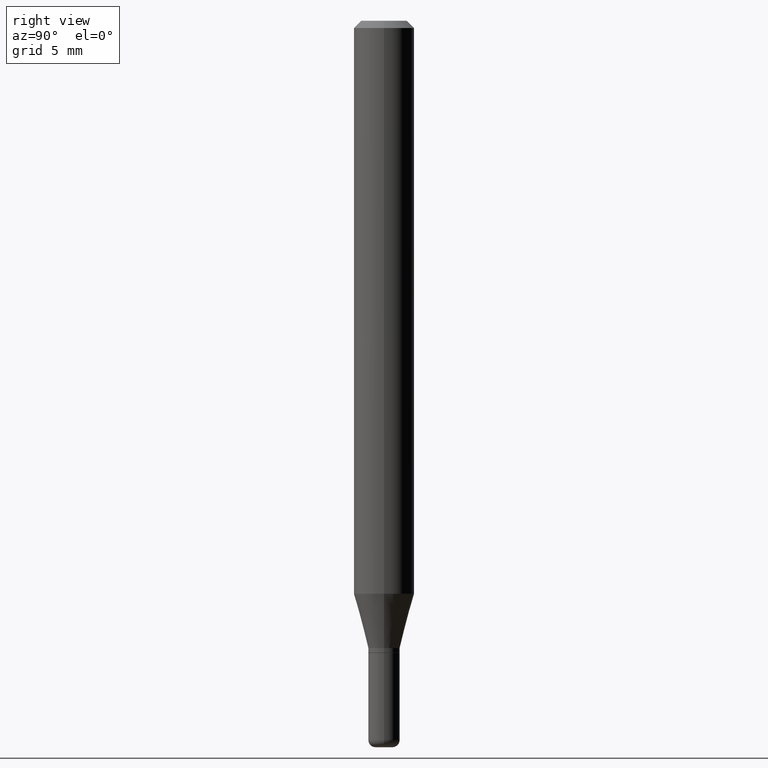
[diagram: clean part render]
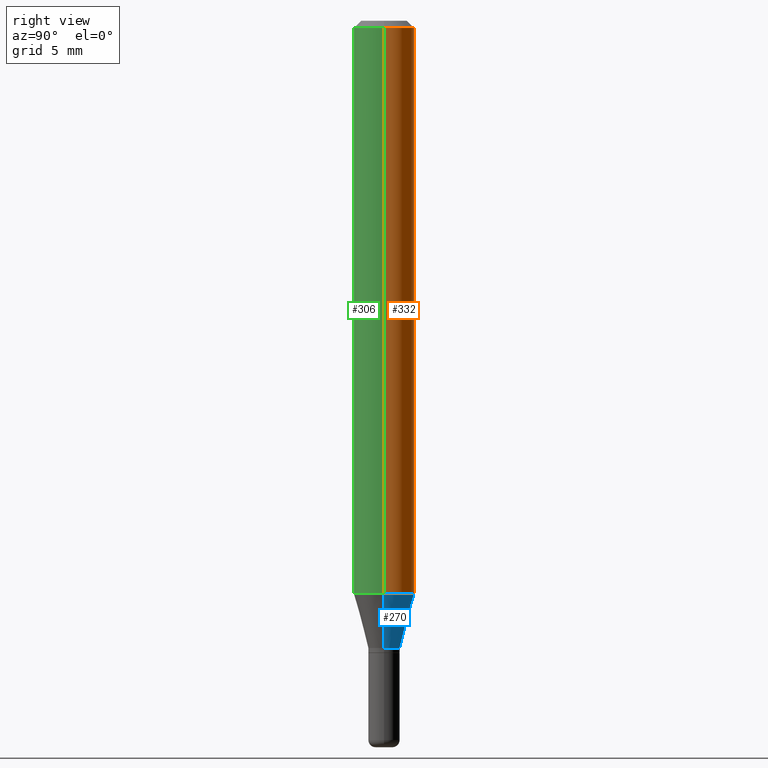
[diagram: same view with three faces highlighted in distinct colors, each labeled with its STEP entity id]
A machine part, right view with three faces highlighted in distinct colors.
Their STEP definitions:

[orange] entity #332 — the highlighted cylindrical surface (edge-blend (fillet) strip) has radius 1.5875 mm, axis along (-0, 0, 1).
#21 = CARTESIAN_POINT ( 'NONE',  ( 3.668203209277632395E-31, -5.237222008264614861E-17, -0.01499999999999970281 ) ) ;
#94 = VECTOR ( 'NONE', #282, 39.37007874015748143 ) ;
#97 = VERTEX_POINT ( 'NONE', #473 ) ;
#102 = EDGE_CURVE ( 'NONE', #381, #119, #114, .T. ) ;
#104 = AXIS2_PLACEMENT_3D ( 'NONE', #21, #347, #470 ) ;
#114 = LINE ( 'NONE', #308, #445 ) ;
#119 = VERTEX_POINT ( 'NONE', #272 ) ;
#121 = CARTESIAN_POINT ( 'NONE',  ( 0.000000000000000000, 0.000000000000000000, 0.000000000000000000 ) ) ;
#193 = EDGE_CURVE ( 'NONE', #327, #97, #201, .T. ) ;
#195 = CARTESIAN_POINT ( 'NONE',  ( -0.06250000000000000000, 4.440892098500626162E-16, -3.074334431409316114E-30 ) ) ;
#201 = LINE ( 'NONE', #195, #94 ) ;
#203 = DIRECTION ( 'NONE',  ( -2.445468806185136597E-29, 3.491481338843145583E-15, 1.000000000000000000 ) ) ;
#206 = CARTESIAN_POINT ( 'NONE',  ( -0.06250000000000000000, -3.686467551444575277E-15, -1.183038475772933751 ) ) ;
#256 = EDGE_LOOP ( 'NONE', ( #423, #491, #377, #450 ) ) ;
#258 = DIRECTION ( 'NONE',  ( -2.445468806185136597E-29, 3.491481338843145583E-15, 1.000000000000000000 ) ) ;
#261 = AXIS2_PLACEMENT_3D ( 'NONE', #121, #203, #324 ) ;
#266 = CARTESIAN_POINT ( 'NONE',  ( 0.06250000000000000000, -4.566991928650029563E-15, -1.183038475772933751 ) ) ;
#271 = DIRECTION ( 'NONE',  ( -2.445468806185136877E-29, 3.491481338843145188E-15, 1.000000000000000000 ) ) ;
#272 = CARTESIAN_POINT ( 'NONE',  ( 0.06250000000000000000, -4.888073874380378612E-16, -0.01499999999999970281 ) ) ;
#282 = DIRECTION ( 'NONE',  ( -2.445468806185136877E-29, 3.491481338843145188E-15, 1.000000000000000000 ) ) ;
#308 = CARTESIAN_POINT ( 'NONE',  ( 0.06250000000000000000, -4.364351673553916694E-16, 3.047610484872459871E-30 ) ) ;
#323 = FACE_OUTER_BOUND ( 'NONE', #256, .T. ) ;
#324 = DIRECTION ( 'NONE',  ( 1.000000000000000000, -6.982962677686266711E-15, 4.876176775795935793E-29 ) ) ;
#327 = VERTEX_POINT ( 'NONE', #206 ) ;
#328 = CIRCLE ( 'NONE', #104, 0.06250000000000000000 ) ;
#332 = ADVANCED_FACE ( 'NONE', ( #323 ), #487, .T. ) ;
#347 = DIRECTION ( 'NONE',  ( -2.445468806185136597E-29, 3.491481338843145583E-15, 1.000000000000000000 ) ) ;
#355 = EDGE_CURVE ( 'NONE', #119, #97, #328, .T. ) ;
#377 = ORIENTED_EDGE ( 'NONE', *, *, #355, .F. ) ;
#381 = VERTEX_POINT ( 'NONE', #266 ) ;
#384 = CARTESIAN_POINT ( 'NONE',  ( 2.893083689019520084E-29, -4.130556761294637105E-15, -1.183038475772933751 ) ) ;
#414 = AXIS2_PLACEMENT_3D ( 'NONE', #384, #258, #462 ) ;
#423 = ORIENTED_EDGE ( 'NONE', *, *, #429, .T. ) ;
#429 = EDGE_CURVE ( 'NONE', #381, #327, #507, .T. ) ;
#445 = VECTOR ( 'NONE', #271, 39.37007874015748143 ) ;
#450 = ORIENTED_EDGE ( 'NONE', *, *, #102, .F. ) ;
#462 = DIRECTION ( 'NONE',  ( 1.000000000000000000, -6.982962677686262766E-15, 0.000000000000000000 ) ) ;
#470 = DIRECTION ( 'NONE',  ( 1.000000000000000000, -6.982962677686266711E-15, 0.000000000000000000 ) ) ;
#473 = CARTESIAN_POINT ( 'NONE',  ( -0.06250000000000000000, -1.647375280838578884E-15, -0.01499999999999970281 ) ) ;
#487 = CYLINDRICAL_SURFACE ( 'NONE', #261, 0.06250000000000000000 ) ;
#491 = ORIENTED_EDGE ( 'NONE', *, *, #193, .T. ) ;
#507 = CIRCLE ( 'NONE', #414, 0.06250000000000000000 ) ;

[blue] entity #270 — the highlighted conical surface has half-angle 15 deg.
#27 = DIRECTION ( 'NONE',  ( 1.000000000000000000, -6.982962677686262766E-15, 0.000000000000000000 ) ) ;
#40 = AXIS2_PLACEMENT_3D ( 'NONE', #182, #496, #162 ) ;
#48 = VERTEX_POINT ( 'NONE', #190 ) ;
#105 = DIRECTION ( 'NONE',  ( 0.2588190451025206285, 1.565188264969627095E-15, 0.9659258262890682012 ) ) ;
#117 = ORIENTED_EDGE ( 'NONE', *, *, #142, .T. ) ;
#131 = LINE ( 'NONE', #501, #219 ) ;
#142 = EDGE_CURVE ( 'NONE', #280, #48, #424, .T. ) ;
#148 = CARTESIAN_POINT ( 'NONE',  ( 3.166882104009752139E-29, -4.521468333801874892E-15, -1.295000000000000151 ) ) ;
#162 = DIRECTION ( 'NONE',  ( 1.000000000000000000, -6.982962677686262766E-15, 0.000000000000000000 ) ) ;
#182 = CARTESIAN_POINT ( 'NONE',  ( 3.166882104009752139E-29, -4.521468333801874892E-15, -1.295000000000000151 ) ) ;
#190 = CARTESIAN_POINT ( 'NONE',  ( -0.03249999999999998029, -3.988504748062208899E-15, -1.295000000000000151 ) ) ;
#206 = CARTESIAN_POINT ( 'NONE',  ( -0.06250000000000000000, -3.686467551444575277E-15, -1.183038475772933751 ) ) ;
#219 = VECTOR ( 'NONE', #354, 39.37007874015748854 ) ;
#235 = VECTOR ( 'NONE', #105, 39.37007874015748854 ) ;
#237 = EDGE_CURVE ( 'NONE', #48, #327, #131, .T. ) ;
#249 = ORIENTED_EDGE ( 'NONE', *, *, #387, .F. ) ;
#258 = DIRECTION ( 'NONE',  ( -2.445468806185136597E-29, 3.491481338843145583E-15, 1.000000000000000000 ) ) ;
#266 = CARTESIAN_POINT ( 'NONE',  ( 0.06250000000000000000, -4.566991928650029563E-15, -1.183038475772933751 ) ) ;
#270 = ADVANCED_FACE ( 'NONE', ( #409 ), #358, .T. ) ;
#280 = VERTEX_POINT ( 'NONE', #408 ) ;
#287 = ORIENTED_EDGE ( 'NONE', *, *, #237, .T. ) ;
#327 = VERTEX_POINT ( 'NONE', #206 ) ;
#341 = ORIENTED_EDGE ( 'NONE', *, *, #429, .F. ) ;
#352 = CARTESIAN_POINT ( 'NONE',  ( 0.03249999999999998029, -4.748414620826678245E-15, -1.295000000000000151 ) ) ;
#354 = DIRECTION ( 'NONE',  ( -0.2588190451025206285, 5.211531920934544731E-15, 0.9659258262890682012 ) ) ;
#358 = CONICAL_SURFACE ( 'NONE', #40, 0.03249999999999998029, 0.2617993877991493523 ) ;
#379 = AXIS2_PLACEMENT_3D ( 'NONE', #148, #385, #27 ) ;
#381 = VERTEX_POINT ( 'NONE', #266 ) ;
#384 = CARTESIAN_POINT ( 'NONE',  ( 2.893083689019520084E-29, -4.130556761294637105E-15, -1.183038475772933751 ) ) ;
#385 = DIRECTION ( 'NONE',  ( -2.445468806185136597E-29, 3.491481338843145583E-15, 1.000000000000000000 ) ) ;
#387 = EDGE_CURVE ( 'NONE', #280, #381, #504, .T. ) ;
#408 = CARTESIAN_POINT ( 'NONE',  ( 0.03249999999999998029, -4.748414620826678245E-15, -1.295000000000000151 ) ) ;
#409 = FACE_OUTER_BOUND ( 'NONE', #485, .T. ) ;
#414 = AXIS2_PLACEMENT_3D ( 'NONE', #384, #258, #462 ) ;
#424 = CIRCLE ( 'NONE', #379, 0.03249999999999998029 ) ;
#429 = EDGE_CURVE ( 'NONE', #381, #327, #507, .T. ) ;
#462 = DIRECTION ( 'NONE',  ( 1.000000000000000000, -6.982962677686262766E-15, 0.000000000000000000 ) ) ;
#485 = EDGE_LOOP ( 'NONE', ( #117, #287, #341, #249 ) ) ;
#496 = DIRECTION ( 'NONE',  ( -2.445468806185136597E-29, 3.491481338843145583E-15, 1.000000000000000000 ) ) ;
#501 = CARTESIAN_POINT ( 'NONE',  ( -0.03249999999999998029, -4.290541944679842521E-15, -1.295000000000000151 ) ) ;
#504 = LINE ( 'NONE', #352, #235 ) ;
#507 = CIRCLE ( 'NONE', #414, 0.06250000000000000000 ) ;

[green] entity #306 — the highlighted cylindrical surface (edge-blend (fillet) strip) has radius 1.5875 mm, axis along (-0, 0, 1).
#5 = DIRECTION ( 'NONE',  ( -2.445468806185136597E-29, 3.491481338843145583E-15, 1.000000000000000000 ) ) ;
#35 = CARTESIAN_POINT ( 'NONE',  ( 2.893083689019520084E-29, -4.130556761294637105E-15, -1.183038475772933751 ) ) ;
#44 = FACE_OUTER_BOUND ( 'NONE', #212, .T. ) ;
#51 = ORIENTED_EDGE ( 'NONE', *, *, #193, .F. ) ;
#59 = AXIS2_PLACEMENT_3D ( 'NONE', #392, #428, #356 ) ;
#63 = EDGE_CURVE ( 'NONE', #97, #119, #118, .T. ) ;
#67 = DIRECTION ( 'NONE',  ( 1.000000000000000000, -6.982962677686262766E-15, 0.000000000000000000 ) ) ;
#94 = VECTOR ( 'NONE', #282, 39.37007874015748143 ) ;
#97 = VERTEX_POINT ( 'NONE', #473 ) ;
#102 = EDGE_CURVE ( 'NONE', #381, #119, #114, .T. ) ;
#114 = LINE ( 'NONE', #308, #445 ) ;
#116 = EDGE_CURVE ( 'NONE', #327, #381, #497, .T. ) ;
#118 = CIRCLE ( 'NONE', #59, 0.06250000000000000000 ) ;
#119 = VERTEX_POINT ( 'NONE', #272 ) ;
#124 = AXIS2_PLACEMENT_3D ( 'NONE', #365, #5, #164 ) ;
#134 = ORIENTED_EDGE ( 'NONE', *, *, #102, .T. ) ;
#164 = DIRECTION ( 'NONE',  ( 1.000000000000000000, -6.982962677686266711E-15, 4.876176775795935793E-29 ) ) ;
#191 = DIRECTION ( 'NONE',  ( -2.445468806185136597E-29, 3.491481338843145583E-15, 1.000000000000000000 ) ) ;
#193 = EDGE_CURVE ( 'NONE', #327, #97, #201, .T. ) ;
#195 = CARTESIAN_POINT ( 'NONE',  ( -0.06250000000000000000, 4.440892098500626162E-16, -3.074334431409316114E-30 ) ) ;
#201 = LINE ( 'NONE', #195, #94 ) ;
#206 = CARTESIAN_POINT ( 'NONE',  ( -0.06250000000000000000, -3.686467551444575277E-15, -1.183038475772933751 ) ) ;
#207 = ORIENTED_EDGE ( 'NONE', *, *, #63, .F. ) ;
#212 = EDGE_LOOP ( 'NONE', ( #51, #239, #134, #207 ) ) ;
#239 = ORIENTED_EDGE ( 'NONE', *, *, #116, .T. ) ;
#242 = AXIS2_PLACEMENT_3D ( 'NONE', #35, #191, #67 ) ;
#266 = CARTESIAN_POINT ( 'NONE',  ( 0.06250000000000000000, -4.566991928650029563E-15, -1.183038475772933751 ) ) ;
#271 = DIRECTION ( 'NONE',  ( -2.445468806185136877E-29, 3.491481338843145188E-15, 1.000000000000000000 ) ) ;
#272 = CARTESIAN_POINT ( 'NONE',  ( 0.06250000000000000000, -4.888073874380378612E-16, -0.01499999999999970281 ) ) ;
#282 = DIRECTION ( 'NONE',  ( -2.445468806185136877E-29, 3.491481338843145188E-15, 1.000000000000000000 ) ) ;
#306 = ADVANCED_FACE ( 'NONE', ( #44 ), #447, .T. ) ;
#308 = CARTESIAN_POINT ( 'NONE',  ( 0.06250000000000000000, -4.364351673553916694E-16, 3.047610484872459871E-30 ) ) ;
#327 = VERTEX_POINT ( 'NONE', #206 ) ;
#356 = DIRECTION ( 'NONE',  ( 1.000000000000000000, -6.982962677686266711E-15, 0.000000000000000000 ) ) ;
#365 = CARTESIAN_POINT ( 'NONE',  ( 0.000000000000000000, 0.000000000000000000, 0.000000000000000000 ) ) ;
#381 = VERTEX_POINT ( 'NONE', #266 ) ;
#392 = CARTESIAN_POINT ( 'NONE',  ( 3.668203209277632395E-31, -5.237222008264614861E-17, -0.01499999999999970281 ) ) ;
#428 = DIRECTION ( 'NONE',  ( -2.445468806185136597E-29, 3.491481338843145583E-15, 1.000000000000000000 ) ) ;
#445 = VECTOR ( 'NONE', #271, 39.37007874015748143 ) ;
#447 = CYLINDRICAL_SURFACE ( 'NONE', #124, 0.06250000000000000000 ) ;
#473 = CARTESIAN_POINT ( 'NONE',  ( -0.06250000000000000000, -1.647375280838578884E-15, -0.01499999999999970281 ) ) ;
#497 = CIRCLE ( 'NONE', #242, 0.06250000000000000000 ) ;